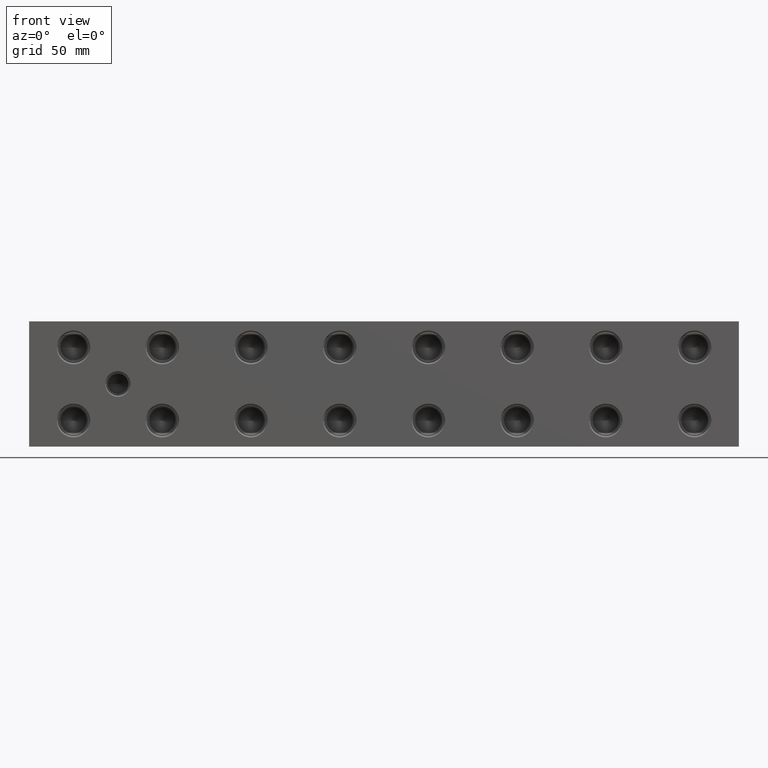
[diagram: clean part render]
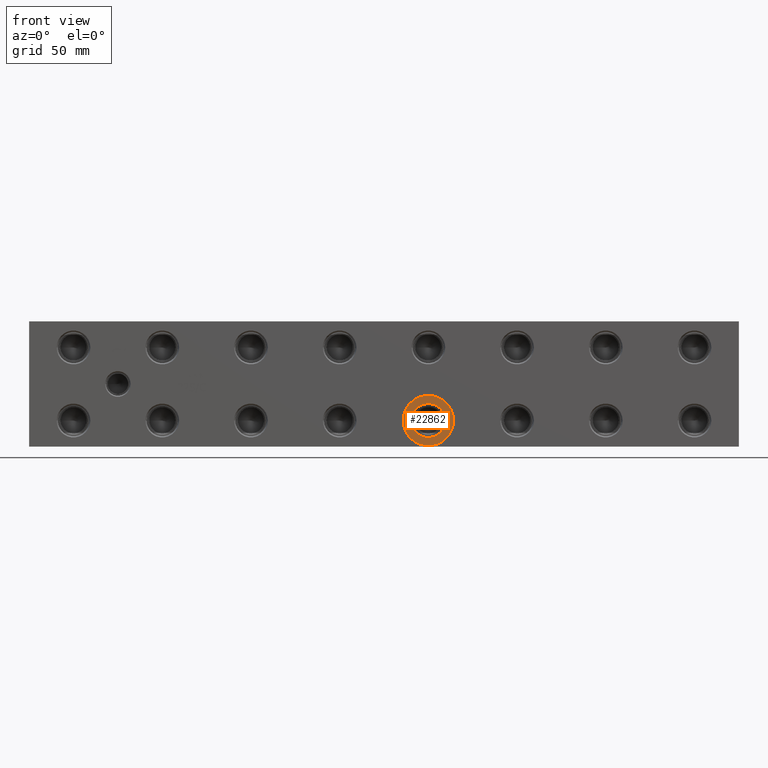
[diagram: same view with one face highlighted and labeled with its STEP entity id]
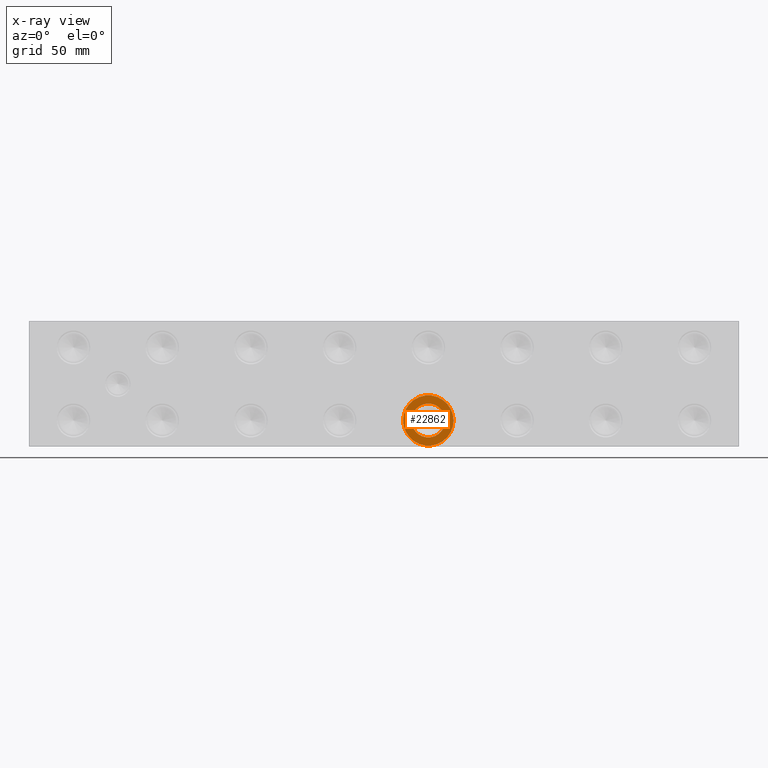
[diagram: x-ray of the same camera — body ghosted, the highlighted face saturated]
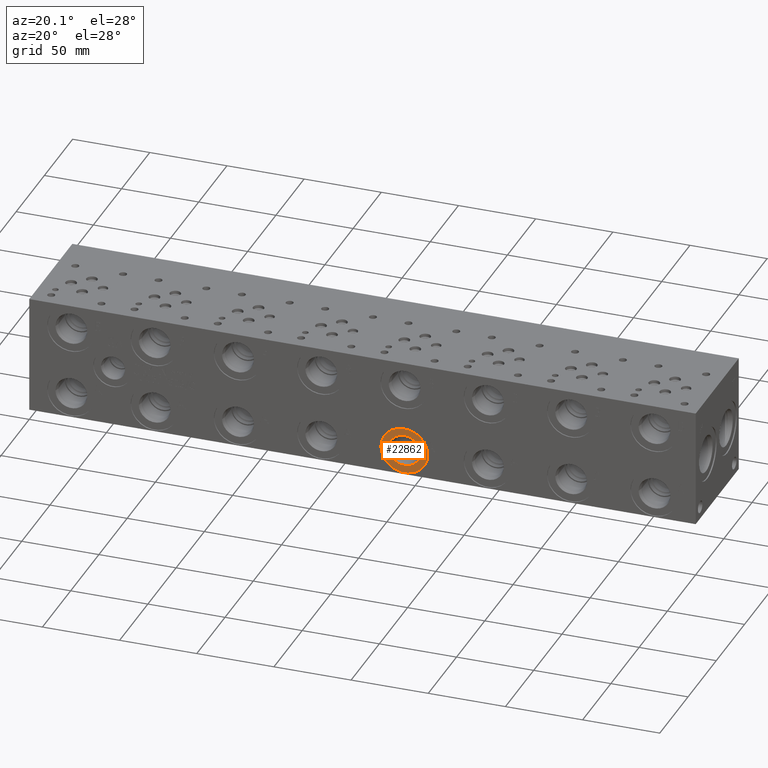
[diagram: same view with one face highlighted and labeled with its STEP entity id]
A machine part, front view. The second image highlights one B-rep face of the part: STEP entity #22862.
The next image is the same camera in x-ray: the body ghosted, the highlighted face saturated — about 0% of this face is hidden behind the body in this view.
A second angle (auxiliary view) of the same face is appended — the face is thin or edge-on in the first view.
In plain terms, the highlighted planar face has unit normal (0, 1, 0).
Its self-contained STEP definition (entity closure, byte-faithful):
#461=CIRCLE('',#23888,15.3162);
#462=CIRCLE('',#23889,15.3162);
#463=CIRCLE('',#23891,10.2997);
#464=CIRCLE('',#23892,10.2997);
#1347=FACE_BOUND('',#4149,.T.);
#1979=PLANE('',#23890);
#2820=FACE_OUTER_BOUND('',#4148,.T.);
#4148=EDGE_LOOP('',(#18716,#18717));
#4149=EDGE_LOOP('',(#18718,#18719));
#10469=VERTEX_POINT('',#38382);
#10470=VERTEX_POINT('',#38384);
#10471=VERTEX_POINT('',#38388);
#10472=VERTEX_POINT('',#38389);
#13439=EDGE_CURVE('',#10469,#10470,#461,.T.);
#13440=EDGE_CURVE('',#10470,#10469,#462,.T.);
#13441=EDGE_CURVE('',#10471,#10472,#463,.T.);
#13442=EDGE_CURVE('',#10472,#10471,#464,.T.);
#18716=ORIENTED_EDGE('',*,*,#13440,.F.);
#18717=ORIENTED_EDGE('',*,*,#13439,.F.);
#18718=ORIENTED_EDGE('',*,*,#13441,.T.);
#18719=ORIENTED_EDGE('',*,*,#13442,.T.);
#22862=ADVANCED_FACE('',(#2820,#1347),#1979,.F.);
#23888=AXIS2_PLACEMENT_3D('',#38385,#27717,#27718);
#23889=AXIS2_PLACEMENT_3D('',#38386,#27719,#27720);
#23890=AXIS2_PLACEMENT_3D('',#38387,#27721,#27722);
#23891=AXIS2_PLACEMENT_3D('',#38390,#27723,#27724);
#23892=AXIS2_PLACEMENT_3D('',#38391,#27725,#27726);
#27717=DIRECTION('center_axis',(0.,1.,0.));
#27718=DIRECTION('ref_axis',(1.,0.,0.));
#27719=DIRECTION('center_axis',(0.,1.,0.));
#27720=DIRECTION('ref_axis',(1.,0.,0.));
#27721=DIRECTION('center_axis',(0.,1.,0.));
#27722=DIRECTION('ref_axis',(0.,0.,1.));
#27723=DIRECTION('center_axis',(0.,1.,0.));
#27724=DIRECTION('ref_axis',(1.,0.,0.));
#27725=DIRECTION('center_axis',(0.,1.,0.));
#27726=DIRECTION('ref_axis',(1.,0.,0.));
#38382=CARTESIAN_POINT('',(227.5586,0.7874,15.875));
#38384=CARTESIAN_POINT('',(258.191,0.7874,15.875));
#38385=CARTESIAN_POINT('Origin',(242.8748,0.7874,15.875));
#38386=CARTESIAN_POINT('Origin',(242.8748,0.7874,15.875));
#38387=CARTESIAN_POINT('Origin',(253.1745,0.7874,15.875));
#38388=CARTESIAN_POINT('',(253.1745,0.7874,15.875));
#38389=CARTESIAN_POINT('',(232.5751,0.787399999999999,15.875));
#38390=CARTESIAN_POINT('Origin',(242.8748,0.7874,15.875));
#38391=CARTESIAN_POINT('Origin',(242.8748,0.7874,15.875));